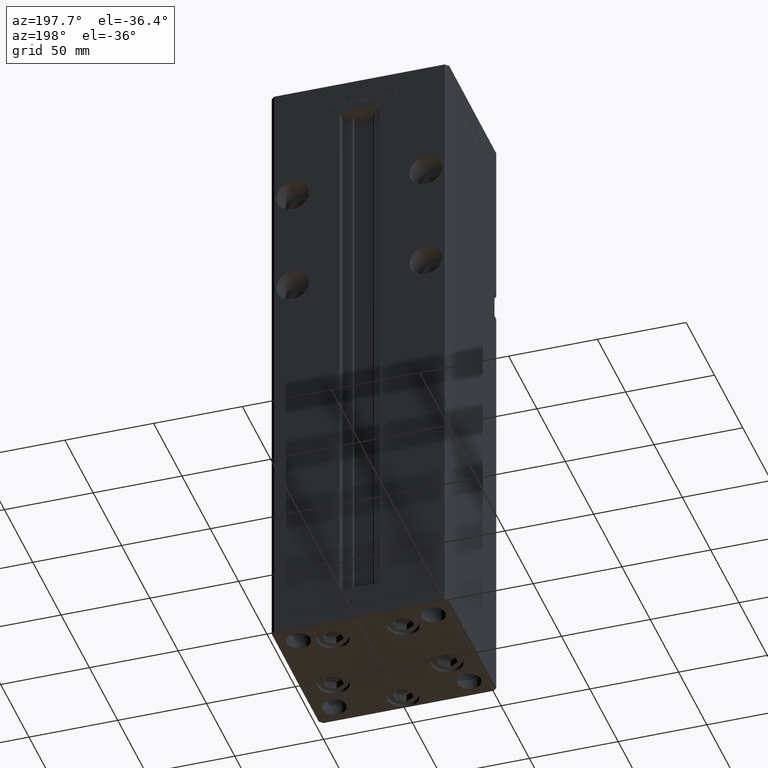
[diagram: clean part render]
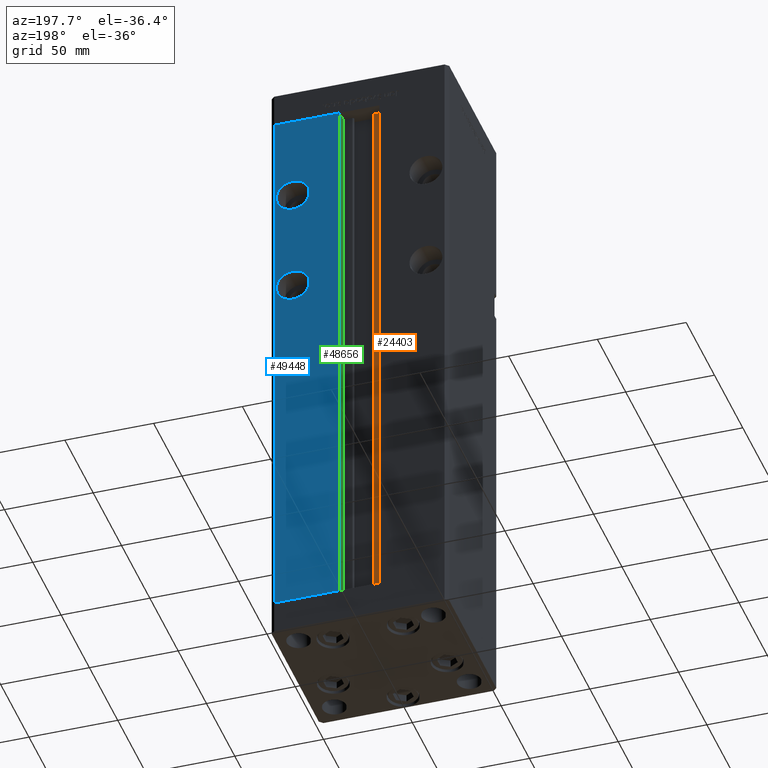
[diagram: same view with three faces highlighted in distinct colors, each labeled with its STEP entity id]
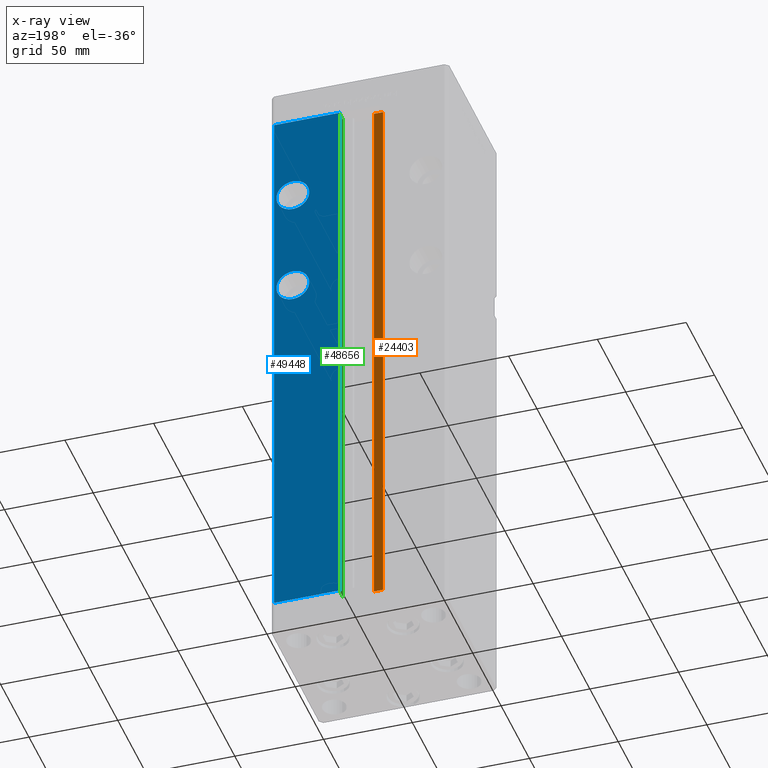
[diagram: x-ray of the same camera — body ghosted, the three highlighted faces saturated]
A machine part, auxiliary view with three faces highlighted in distinct colors.
The next image is the same camera in x-ray (body ghosted, the three faces saturated) — at least one of them is partly hidden behind the body in this view.
Their STEP definitions:

[orange] entity #24403 — the highlighted planar face has unit normal (0, -1, 0).
#559 = EDGE_CURVE ( 'NONE', #22388, #24523, #11359, .T. ) ;
#1564 = LINE ( 'NONE', #42137, #33115 ) ;
#1986 = CARTESIAN_POINT ( 'NONE',  ( 0.000000000000000000, 37.00000000000000000, 318.5000000000000000 ) ) ;
#2133 = CARTESIAN_POINT ( 'NONE',  ( -11.24999999999999645, 37.00000000000000000, 0.000000000000000000 ) ) ;
#4669 = FACE_OUTER_BOUND ( 'NONE', #23500, .T. ) ;
#6740 = LINE ( 'NONE', #15619, #43612 ) ;
#7079 = CARTESIAN_POINT ( 'NONE',  ( -6.183333333333996151, 37.00000000000000000, 0.000000000000000000 ) ) ;
#10545 = DIRECTION ( 'NONE',  ( -0.000000000000000000, -0.000000000000000000, 1.000000000000000000 ) ) ;
#11359 = LINE ( 'NONE', #44134, #38416 ) ;
#15619 = CARTESIAN_POINT ( 'NONE',  ( -6.183333333333996151, 37.00000000000000000, 0.000000000000000000 ) ) ;
#17073 = CARTESIAN_POINT ( 'NONE',  ( -6.183333333333996151, 37.00000000000000000, 318.5000000000000000 ) ) ;
#18000 = ORIENTED_EDGE ( 'NONE', *, *, #43608, .F. ) ;
#20538 = DIRECTION ( 'NONE',  ( 0.000000000000000000, 0.000000000000000000, -1.000000000000000000 ) ) ;
#21064 = CARTESIAN_POINT ( 'NONE',  ( -6.183333333333996151, 37.00000000000000000, 0.000000000000000000 ) ) ;
#21460 = DIRECTION ( 'NONE',  ( 1.000000000000000000, -0.000000000000000000, -0.000000000000000000 ) ) ;
#22388 = VERTEX_POINT ( 'NONE', #2133 ) ;
#23500 = EDGE_LOOP ( 'NONE', ( #18000, #35969, #34099, #36726 ) ) ;
#24403 = ADVANCED_FACE ( 'NONE', ( #4669 ), #33392, .F. ) ;
#24523 = VERTEX_POINT ( 'NONE', #43853 ) ;
#32030 = VERTEX_POINT ( 'NONE', #7079 ) ;
#33115 = VECTOR ( 'NONE', #21460, 1000.000000000000000 ) ;
#33255 = VECTOR ( 'NONE', #35272, 1000.000000000000000 ) ;
#33392 = PLANE ( 'NONE',  #35559 ) ;
#33891 = EDGE_CURVE ( 'NONE', #22388, #32030, #1564, .T. ) ;
#34099 = ORIENTED_EDGE ( 'NONE', *, *, #559, .T. ) ;
#35272 = DIRECTION ( 'NONE',  ( -1.000000000000000000, 0.000000000000000000, 0.000000000000000000 ) ) ;
#35559 = AXIS2_PLACEMENT_3D ( 'NONE', #21064, #37430, #20538 ) ;
#35969 = ORIENTED_EDGE ( 'NONE', *, *, #33891, .F. ) ;
#36275 = DIRECTION ( 'NONE',  ( -0.000000000000000000, -0.000000000000000000, 1.000000000000000000 ) ) ;
#36594 = EDGE_CURVE ( 'NONE', #43118, #24523, #47098, .T. ) ;
#36726 = ORIENTED_EDGE ( 'NONE', *, *, #36594, .F. ) ;
#37430 = DIRECTION ( 'NONE',  ( 0.000000000000000000, -1.000000000000000000, -0.000000000000000000 ) ) ;
#38416 = VECTOR ( 'NONE', #10545, 1000.000000000000000 ) ;
#42137 = CARTESIAN_POINT ( 'NONE',  ( -6.183333333333996151, 37.00000000000000000, 0.000000000000000000 ) ) ;
#43118 = VERTEX_POINT ( 'NONE', #17073 ) ;
#43608 = EDGE_CURVE ( 'NONE', #32030, #43118, #6740, .T. ) ;
#43612 = VECTOR ( 'NONE', #36275, 1000.000000000000000 ) ;
#43853 = CARTESIAN_POINT ( 'NONE',  ( -11.24999999999999645, 37.00000000000000000, 318.5000000000000000 ) ) ;
#44134 = CARTESIAN_POINT ( 'NONE',  ( -11.24999999999999645, 37.00000000000000000, 0.000000000000000000 ) ) ;
#47098 = LINE ( 'NONE', #1986, #33255 ) ;

[blue] entity #49448 — the highlighted planar face has unit normal (0, -1, 0).
#1166 = CARTESIAN_POINT ( 'NONE',  ( 37.50000000000000000, 43.50000000000000000, 269.4999999999999432 ) ) ;
#1555 = VERTEX_POINT ( 'NONE', #48699 ) ;
#1643 = AXIS2_PLACEMENT_3D ( 'NONE', #46247, #41950, #37152 ) ;
#2800 = EDGE_CURVE ( 'NONE', #26527, #48497, #5387, .T. ) ;
#3339 = EDGE_CURVE ( 'NONE', #6176, #26527, #11360, .T. ) ;
#4119 = CIRCLE ( 'NONE', #11963, 9.250000000000008882 ) ;
#5386 = EDGE_CURVE ( 'NONE', #48497, #12422, #18805, .T. ) ;
#5387 = LINE ( 'NONE', #21778, #23054 ) ;
#5718 = DIRECTION ( 'NONE',  ( 0.000000000000000000, 0.000000000000000000, -1.000000000000000000 ) ) ;
#5750 = ORIENTED_EDGE ( 'NONE', *, *, #14934, .F. ) ;
#6176 = VERTEX_POINT ( 'NONE', #20286 ) ;
#6861 = ORIENTED_EDGE ( 'NONE', *, *, #24102, .T. ) ;
#7166 = CARTESIAN_POINT ( 'NONE',  ( -11.24999999999999645, 43.50000000000000000, 0.000000000000000000 ) ) ;
#9330 = VECTOR ( 'NONE', #15669, 1000.000000000000000 ) ;
#10191 = EDGE_LOOP ( 'NONE', ( #25332, #49170 ) ) ;
#11360 = LINE ( 'NONE', #15936, #9330 ) ;
#11615 = CIRCLE ( 'NONE', #39785, 9.249999999999980460 ) ;
#11795 = FACE_BOUND ( 'NONE', #39349, .T. ) ;
#11963 = AXIS2_PLACEMENT_3D ( 'NONE', #47624, #42531, #5718 ) ;
#12211 = AXIS2_PLACEMENT_3D ( 'NONE', #33001, #44299, #23877 ) ;
#12422 = VERTEX_POINT ( 'NONE', #51760 ) ;
#12816 = ORIENTED_EDGE ( 'NONE', *, *, #5386, .T. ) ;
#14500 = ORIENTED_EDGE ( 'NONE', *, *, #3339, .T. ) ;
#14934 = EDGE_CURVE ( 'NONE', #1555, #16982, #51605, .T. ) ;
#15669 = DIRECTION ( 'NONE',  ( -0.000000000000000000, -0.000000000000000000, 1.000000000000000000 ) ) ;
#15829 = CARTESIAN_POINT ( 'NONE',  ( 48.00000000000000711, 43.50000000000000000, 318.5000000000000000 ) ) ;
#15936 = CARTESIAN_POINT ( 'NONE',  ( 11.24999999999999645, 43.50000000000000000, 0.000000000000000000 ) ) ;
#16438 = CARTESIAN_POINT ( 'NONE',  ( 37.50000000000000000, 43.50000000000000000, 269.4999999999999432 ) ) ;
#16746 = VECTOR ( 'NONE', #36702, 1000.000000000000000 ) ;
#16982 = VERTEX_POINT ( 'NONE', #36456 ) ;
#18805 = LINE ( 'NONE', #51862, #32576 ) ;
#20286 = CARTESIAN_POINT ( 'NONE',  ( 11.24999999999999645, 43.50000000000000000, 0.000000000000000000 ) ) ;
#21320 = DIRECTION ( 'NONE',  ( -0.000000000000000000, -0.000000000000000000, -1.000000000000000000 ) ) ;
#21778 = CARTESIAN_POINT ( 'NONE',  ( -11.24999999999999645, 43.50000000000000000, 318.5000000000000000 ) ) ;
#23054 = VECTOR ( 'NONE', #38681, 1000.000000000000000 ) ;
#23210 = ORIENTED_EDGE ( 'NONE', *, *, #26320, .F. ) ;
#23877 = DIRECTION ( 'NONE',  ( 0.000000000000000000, -0.000000000000000000, -1.000000000000000000 ) ) ;
#24102 = EDGE_CURVE ( 'NONE', #12422, #6176, #49081, .T. ) ;
#25332 = ORIENTED_EDGE ( 'NONE', *, *, #42402, .F. ) ;
#26320 = EDGE_CURVE ( 'NONE', #16982, #1555, #11615, .T. ) ;
#26527 = VERTEX_POINT ( 'NONE', #32732 ) ;
#27908 = FACE_OUTER_BOUND ( 'NONE', #49938, .T. ) ;
#28270 = VERTEX_POINT ( 'NONE', #41860 ) ;
#32576 = VECTOR ( 'NONE', #21320, 1000.000000000000000 ) ;
#32732 = CARTESIAN_POINT ( 'NONE',  ( 11.24999999999998934, 43.50000000000000000, 318.5000000000000000 ) ) ;
#33001 = CARTESIAN_POINT ( 'NONE',  ( -11.24999999999999645, 43.50000000000000000, 318.5000000000000000 ) ) ;
#35511 = VERTEX_POINT ( 'NONE', #36134 ) ;
#36134 = CARTESIAN_POINT ( 'NONE',  ( 37.50000000000000000, 43.50000000000000000, 200.2499999999999716 ) ) ;
#36295 = DIRECTION ( 'NONE',  ( 0.000000000000000000, 1.000000000000000000, 0.000000000000000000 ) ) ;
#36456 = CARTESIAN_POINT ( 'NONE',  ( 37.50000000000000000, 43.50000000000000000, 278.7499999999999432 ) ) ;
#36502 = FACE_BOUND ( 'NONE', #10191, .T. ) ;
#36702 = DIRECTION ( 'NONE',  ( -1.000000000000000000, 0.000000000000000000, 0.000000000000000000 ) ) ;
#37152 = DIRECTION ( 'NONE',  ( 0.000000000000000000, 0.000000000000000000, -1.000000000000000000 ) ) ;
#37963 = DIRECTION ( 'NONE',  ( 0.000000000000000000, 0.000000000000000000, 1.000000000000000000 ) ) ;
#38681 = DIRECTION ( 'NONE',  ( 1.000000000000000000, 0.000000000000000000, 0.000000000000000000 ) ) ;
#39349 = EDGE_LOOP ( 'NONE', ( #23210, #5750 ) ) ;
#39575 = AXIS2_PLACEMENT_3D ( 'NONE', #1166, #41236, #37963 ) ;
#39785 = AXIS2_PLACEMENT_3D ( 'NONE', #16438, #36295, #48391 ) ;
#41236 = DIRECTION ( 'NONE',  ( 0.000000000000000000, 1.000000000000000000, 0.000000000000000000 ) ) ;
#41860 = CARTESIAN_POINT ( 'NONE',  ( 37.50000000000000000, 43.50000000000000000, 218.7500000000000000 ) ) ;
#41950 = DIRECTION ( 'NONE',  ( 0.000000000000000000, 1.000000000000000000, -0.000000000000000000 ) ) ;
#42402 = EDGE_CURVE ( 'NONE', #28270, #35511, #4119, .T. ) ;
#42531 = DIRECTION ( 'NONE',  ( 0.000000000000000000, 1.000000000000000000, -0.000000000000000000 ) ) ;
#44299 = DIRECTION ( 'NONE',  ( 0.000000000000000000, -1.000000000000000000, 0.000000000000000000 ) ) ;
#46247 = CARTESIAN_POINT ( 'NONE',  ( 37.50000000000000000, 43.50000000000000000, 209.5000000000000000 ) ) ;
#47624 = CARTESIAN_POINT ( 'NONE',  ( 37.50000000000000000, 43.50000000000000000, 209.5000000000000000 ) ) ;
#48007 = ORIENTED_EDGE ( 'NONE', *, *, #2800, .T. ) ;
#48391 = DIRECTION ( 'NONE',  ( 0.000000000000000000, 0.000000000000000000, 1.000000000000000000 ) ) ;
#48497 = VERTEX_POINT ( 'NONE', #15829 ) ;
#48699 = CARTESIAN_POINT ( 'NONE',  ( 37.50000000000000000, 43.50000000000000000, 260.2500000000000000 ) ) ;
#49081 = LINE ( 'NONE', #7166, #16746 ) ;
#49170 = ORIENTED_EDGE ( 'NONE', *, *, #51017, .F. ) ;
#49448 = ADVANCED_FACE ( 'NONE', ( #36502, #11795, #27908 ), #52908, .F. ) ;
#49938 = EDGE_LOOP ( 'NONE', ( #6861, #14500, #48007, #12816 ) ) ;
#51017 = EDGE_CURVE ( 'NONE', #35511, #28270, #51395, .T. ) ;
#51395 = CIRCLE ( 'NONE', #1643, 9.250000000000008882 ) ;
#51605 = CIRCLE ( 'NONE', #39575, 9.249999999999980460 ) ;
#51760 = CARTESIAN_POINT ( 'NONE',  ( 48.00000000000000711, 43.50000000000000000, 0.000000000000000000 ) ) ;
#51862 = CARTESIAN_POINT ( 'NONE',  ( 48.00000000000000711, 43.50000000000000000, 318.5000000000000000 ) ) ;
#52908 = PLANE ( 'NONE',  #12211 ) ;

[green] entity #48656 — the highlighted planar face has unit normal (1, 0, 0).
#1408 = ORIENTED_EDGE ( 'NONE', *, *, #31595, .T. ) ;
#2050 = DIRECTION ( 'NONE',  ( -0.000000000000000000, -0.000000000000000000, 1.000000000000000000 ) ) ;
#2692 = VERTEX_POINT ( 'NONE', #43587 ) ;
#3339 = EDGE_CURVE ( 'NONE', #6176, #26527, #11360, .T. ) ;
#5446 = EDGE_CURVE ( 'NONE', #26527, #35761, #50064, .T. ) ;
#6176 = VERTEX_POINT ( 'NONE', #20286 ) ;
#8819 = CARTESIAN_POINT ( 'NONE',  ( 11.24999999999999645, 37.00000000000000000, 0.000000000000000000 ) ) ;
#9070 = PLANE ( 'NONE',  #43767 ) ;
#9310 = LINE ( 'NONE', #46638, #49394 ) ;
#9330 = VECTOR ( 'NONE', #15669, 1000.000000000000000 ) ;
#11360 = LINE ( 'NONE', #15936, #9330 ) ;
#15669 = DIRECTION ( 'NONE',  ( -0.000000000000000000, -0.000000000000000000, 1.000000000000000000 ) ) ;
#15936 = CARTESIAN_POINT ( 'NONE',  ( 11.24999999999999645, 43.50000000000000000, 0.000000000000000000 ) ) ;
#16905 = FACE_OUTER_BOUND ( 'NONE', #18663, .T. ) ;
#17151 = VECTOR ( 'NONE', #47545, 1000.000000000000000 ) ;
#17822 = ORIENTED_EDGE ( 'NONE', *, *, #3339, .F. ) ;
#18243 = LINE ( 'NONE', #34613, #34274 ) ;
#18663 = EDGE_LOOP ( 'NONE', ( #17822, #42929, #1408, #26782 ) ) ;
#20286 = CARTESIAN_POINT ( 'NONE',  ( 11.24999999999999645, 43.50000000000000000, 0.000000000000000000 ) ) ;
#20920 = DIRECTION ( 'NONE',  ( 0.000000000000000000, 0.000000000000000000, -1.000000000000000000 ) ) ;
#26527 = VERTEX_POINT ( 'NONE', #32732 ) ;
#26782 = ORIENTED_EDGE ( 'NONE', *, *, #5446, .F. ) ;
#29386 = CARTESIAN_POINT ( 'NONE',  ( 11.24999999999999645, 0.000000000000000000, 318.5000000000000000 ) ) ;
#31595 = EDGE_CURVE ( 'NONE', #2692, #35761, #9310, .T. ) ;
#32732 = CARTESIAN_POINT ( 'NONE',  ( 11.24999999999998934, 43.50000000000000000, 318.5000000000000000 ) ) ;
#34274 = VECTOR ( 'NONE', #51018, 1000.000000000000000 ) ;
#34613 = CARTESIAN_POINT ( 'NONE',  ( 11.24999999999999645, 37.00000000000000000, 0.000000000000000000 ) ) ;
#35761 = VERTEX_POINT ( 'NONE', #39028 ) ;
#37286 = DIRECTION ( 'NONE',  ( 1.000000000000000000, -0.000000000000000000, 0.000000000000000000 ) ) ;
#39028 = CARTESIAN_POINT ( 'NONE',  ( 11.24999999999999645, 37.00000000000000000, 318.5000000000000000 ) ) ;
#42929 = ORIENTED_EDGE ( 'NONE', *, *, #47745, .F. ) ;
#43587 = CARTESIAN_POINT ( 'NONE',  ( 11.24999999999999645, 37.00000000000000000, 0.000000000000000000 ) ) ;
#43767 = AXIS2_PLACEMENT_3D ( 'NONE', #8819, #37286, #20920 ) ;
#46638 = CARTESIAN_POINT ( 'NONE',  ( 11.24999999999999645, 37.00000000000000000, 0.000000000000000000 ) ) ;
#47545 = DIRECTION ( 'NONE',  ( -0.000000000000000000, -1.000000000000000000, 0.000000000000000000 ) ) ;
#47745 = EDGE_CURVE ( 'NONE', #2692, #6176, #18243, .T. ) ;
#48656 = ADVANCED_FACE ( 'NONE', ( #16905 ), #9070, .F. ) ;
#49394 = VECTOR ( 'NONE', #2050, 1000.000000000000000 ) ;
#50064 = LINE ( 'NONE', #29386, #17151 ) ;
#51018 = DIRECTION ( 'NONE',  ( 0.000000000000000000, 1.000000000000000000, 0.000000000000000000 ) ) ;